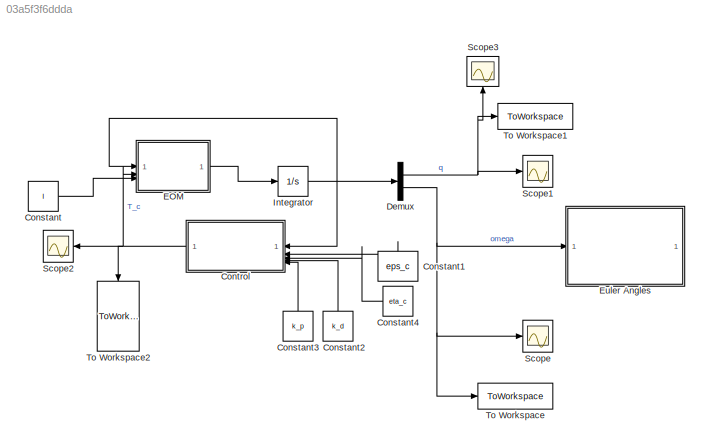
MODEL slx_03a5f3f6ddda
KIND model
CONFIG AbsTol = auto
CONFIG EnableMultiTasking = off
CONFIG FixedStep = auto
CONFIG MaxStep = auto
CONFIG MinStep = auto
CONFIG RelTol = 1e-8
CONFIG SampleTimeConstraint = Unconstrained
CONFIG SolverName = VariableStepAuto
CONFIG StartTime = 0.0
CONFIG StopTime = 60
BLOCK [Constant] Constant
  Value = I
BLOCK [Constant] Constant1
  NameLocation = right
  Value = eps_c
BLOCK [Constant] Constant2
  NameLocation = right
  Value = k_d
BLOCK [Constant] Constant3
  NameLocation = right
  Value = k_p
  VectorParams1D = off
BLOCK [Constant] Constant4
  NameLocation = top
  Value = eta_c
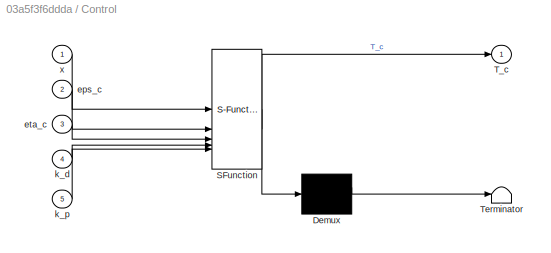
BLOCK [SubSystem] Control
  ErrorFcn = Stateflow.Translate.translate
  LibrarySourceBlock = simulink/User-Defined\nFunctions/MATLAB Function
  NameLocation = top
  PermitHierarchicalResolution = ExplicitOnly
  SFBlockType = MATLAB Function
  TreatAsAtomicUnit = on
BLOCK [Demux] Control/ Demux 
  Outputs = 1
BLOCK [S-Function] Control/ SFunction 
  EnableBusSupport = on
  FunctionName = sf_sfun
  PortCounts = [5 2]
  SFcnIsStateOwnerBlock = off
  SFunctionDeploymentMode = off
  Tag = Stateflow S-Function 1
BLOCK [Terminator] Control/ Terminator 
BLOCK [Outport] Control/T_c
BLOCK [Inport] Control/eps_c
  Port = 2
BLOCK [Inport] Control/eta_c
  Port = 3
BLOCK [Inport] Control/k_d
  Port = 4
BLOCK [Inport] Control/k_p
  Port = 5
BLOCK [Inport] Control/x
BLOCK [Demux] Demux
  Outputs = [-1 3]
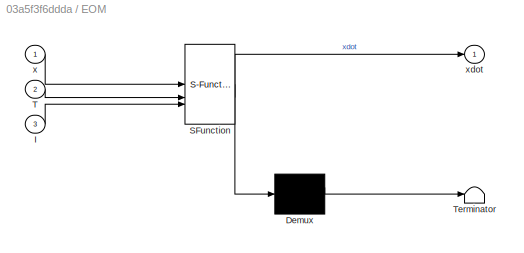
BLOCK [SubSystem] EOM
  ErrorFcn = Stateflow.Translate.translate
  LibrarySourceBlock = simulink/User-Defined\nFunctions/MATLAB Function
  PermitHierarchicalResolution = ExplicitOnly
  SFBlockType = MATLAB Function
  TreatAsAtomicUnit = on
BLOCK [Demux] EOM/ Demux 
  Outputs = 1
BLOCK [S-Function] EOM/ SFunction 
  EnableBusSupport = on
  FunctionName = sf_sfun
  PortCounts = [3 2]
  SFcnIsStateOwnerBlock = off
  SFunctionDeploymentMode = off
  Tag = Stateflow S-Function 2
BLOCK [Terminator] EOM/ Terminator 
BLOCK [Inport] EOM/I
  Port = 3
BLOCK [Inport] EOM/T
  Port = 2
BLOCK [Inport] EOM/x
BLOCK [Outport] EOM/xdot
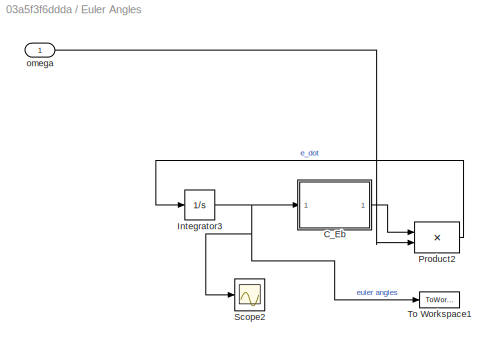
BLOCK [SubSystem] Euler Angles
  Commented = on
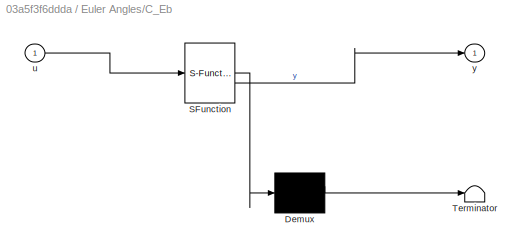
BLOCK [SubSystem] Euler Angles/C_Eb
  ErrorFcn = Stateflow.Translate.translate
  LibrarySourceBlock = simulink/User-Defined\nFunctions/MATLAB Function
  PermitHierarchicalResolution = ExplicitOnly
  SFBlockType = MATLAB Function
  TreatAsAtomicUnit = on
BLOCK [Demux] Euler Angles/C_Eb/ Demux 
  Outputs = 1
BLOCK [S-Function] Euler Angles/C_Eb/ SFunction 
  EnableBusSupport = on
  FunctionName = sf_sfun
  PortCounts = [1 2]
  SFcnIsStateOwnerBlock = off
  SFunctionDeploymentMode = off
  Tag = Stateflow S-Function 3
BLOCK [Terminator] Euler Angles/C_Eb/ Terminator 
BLOCK [Inport] Euler Angles/C_Eb/u
BLOCK [Outport] Euler Angles/C_Eb/y
BLOCK [Integrator] Euler Angles/Integrator3
  InitialCondition = e_0
BLOCK [Product] Euler Angles/Product2
  Multiplication = Matrix(*)
BLOCK [Scope] Euler Angles/Scope2
  Floating = off
  NumInputPorts = 1
  ScopeSpecificationString = Simulink.scopes.TimeScopeBlockCfg('CurrentConfiguration', extmgr.ConfigurationSet(extmgr.Configuration('Core','General UI',true),extmgr.Configuration('Core','Source UI',true),extmgr.Configuration('Sources','WiredSimulink',true,'DataLoggingVariableName','ScopeData1'),extmgr.Configuration('Visuals','Time Domain',true,'SerializedDisplays',{struct('MinYLimReal','-7.13235','MaxYLimReal','3.75975','YLab...<+1389ch>
BLOCK [ToWorkspace] Euler Angles/To Workspace1
  FixptAsFi = on
  MaxDataPoints = inf
  SampleTime = -1
  VariableName = eul
BLOCK [Inport] Euler Angles/omega
BLOCK [Integrator] Integrator
  InitialCondition = [eps_0; eta_0; omega_0]
BLOCK [Scope] Scope
  Floating = off
  NumInputPorts = 1
  ScopeSpecificationString = Simulink.scopes.TimeScopeBlockCfg('CurrentConfiguration', extmgr.ConfigurationSet(extmgr.Configuration('Core','General UI',true),extmgr.Configuration('Core','Source UI',true),extmgr.Configuration('Sources','WiredSimulink',true,'DataLoggingVariableName','ScopeData1'),extmgr.Configuration('Visuals','Time Domain',true,'SerializedDisplays',{struct('MinYLimReal','-0.08125','MaxYLimReal','0.23125','YLab...<+1415ch>
BLOCK [Scope] Scope1
  Floating = off
  NumInputPorts = 1
  ScopeSpecificationString = Simulink.scopes.TimeScopeBlockCfg('CurrentConfiguration', extmgr.ConfigurationSet(extmgr.Configuration('Core','General UI',true),extmgr.Configuration('Core','Source UI',true),extmgr.Configuration('Sources','WiredSimulink',true,'DataLoggingVariableName','ScopeData2'),extmgr.Configuration('Visuals','Time Domain',true,'SerializedDisplays',{struct('MinYLimReal','-1.04996','MaxYLimReal','1.04949','YLab...<+1455ch>
BLOCK [Scope] Scope2
  Floating = off
  NameLocation = top
  NumInputPorts = 1
  ScopeSpecificationString = Simulink.scopes.TimeScopeBlockCfg('CurrentConfiguration', extmgr.ConfigurationSet(extmgr.Configuration('Core','General UI',true),extmgr.Configuration('Core','Source UI',true),extmgr.Configuration('Sources','WiredSimulink',true,'DataLoggingVariableName','ScopeData3'),extmgr.Configuration('Visuals','Time Domain',true,'SerializedDisplays',{struct('MinYLimReal','-0.02031','MaxYLimReal','0.05781','YLab...<+1403ch>
BLOCK [Scope] Scope3
  Floating = off
  NameLocation = right
  NumInputPorts = 1
  ScopeSpecificationString = Simulink.scopes.TimeScopeBlockCfg('CurrentConfiguration', extmgr.ConfigurationSet(extmgr.Configuration('Core','General UI',true),extmgr.Configuration('Core','Source UI',true),extmgr.Configuration('Sources','WiredSimulink',true,'DataLoggingVariableName','ScopeData1'),extmgr.Configuration('Visuals','Time Domain',true,'SerializedDisplays',{struct('MinYLimReal','-1.20747','MaxYLimReal','1.00905','YLab...<+1380ch>
BLOCK [ToWorkspace] To Workspace
  FixptAsFi = on
  MaxDataPoints = inf
  SampleTime = -1
  VariableName = omegaData
BLOCK [ToWorkspace] To Workspace1
  FixptAsFi = on
  MaxDataPoints = inf
  SampleTime = -1
  VariableName = q
BLOCK [ToWorkspace] To Workspace2
  FixptAsFi = on
  MaxDataPoints = inf
  NameLocation = left
  SampleTime = -1
  Save2DSignal = 2-D array (concatenate along first dimension)
  VariableName = T_c
LINE Constant1:1 -> Control:2
LINE Constant2:1 -> Control:4
LINE Constant3:1 -> Control:5
LINE Constant4:1 -> Control:3
LINE Constant:1 -> EOM:3
NET Control:1 -> EOM:2, Scope2:1, To Workspace2:1
NET Demux:1 -> Scope1:1, Scope3:1, To Workspace1:1
NET Demux:2 -> Euler Angles:1, Scope:1, To Workspace:1
LINE EOM:1 -> Integrator:1
LINE Euler Angles/C_Eb:1 -> Euler Angles/Product2:1
NET Euler Angles/Integrator3:1 -> Euler Angles/C_Eb:1, Euler Angles/Scope2:1, Euler Angles/To Workspace1:1
LINE Euler Angles/Product2:1 -> Euler Angles/Integrator3:1
LINE Euler Angles/omega:1 -> Euler Angles/Product2:2
NET Integrator:1 -> Control:1, Demux:1, EOM:1
note: NET lines group one-source signal fan-out (src -> all destinations, sorted); 1:1 wires keep LINE
CHART Control states=1 transitions=1
  STATE_LABEL 'eML_blk_kernel()'
  STATE_LABEL "SCRIPT:\nfunction T_c = fcn(x, eps_c, eta_c, k_d, k_p)\n\nquat_err = quatmultiply(quatconj([x(4) x(1:3)']), [eta_c eps_c']);\nomega = x(5:7);\nT_c = -k_p* quat_err(2:4)' -k_d*omega; "
CHART EOM states=1 transitions=1
  STATE_LABEL 'eML_blk_kernel()'
  STATE_LABEL "SCRIPT:\nfunction xdot = fcn(x, T, I)\n\nxdot = zeros(7,1);\neps = x(1:3); \neta = x(4);\nomega = x(5:7);\nxdot(1:3) = .5 * (eta *eye(3) + xmat(eps)) * omega;\nxdot(4) = -.5 * eps' * omega;\nxdot(5:7) = I^-1 * (-xmat(omega)*I*omega + T);\n\nend"
CHART Euler Angles/C_Eb states=1 transitions=1
  STATE_LABEL 'eML_blk_kernel()'
  STATE_LABEL 'SCRIPT:\nfunction y = fcn(u)\n\ny = C_e(u);'
CHART  states=0 transitions=0
CHART  states=0 transitions=0
CHART  states=0 transitions=0
